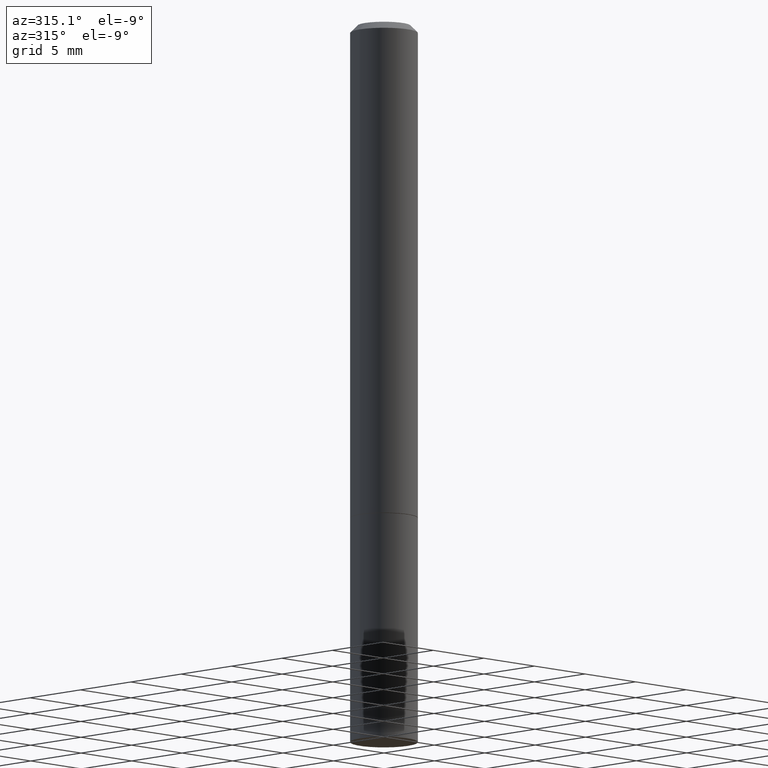
[diagram: clean part render]
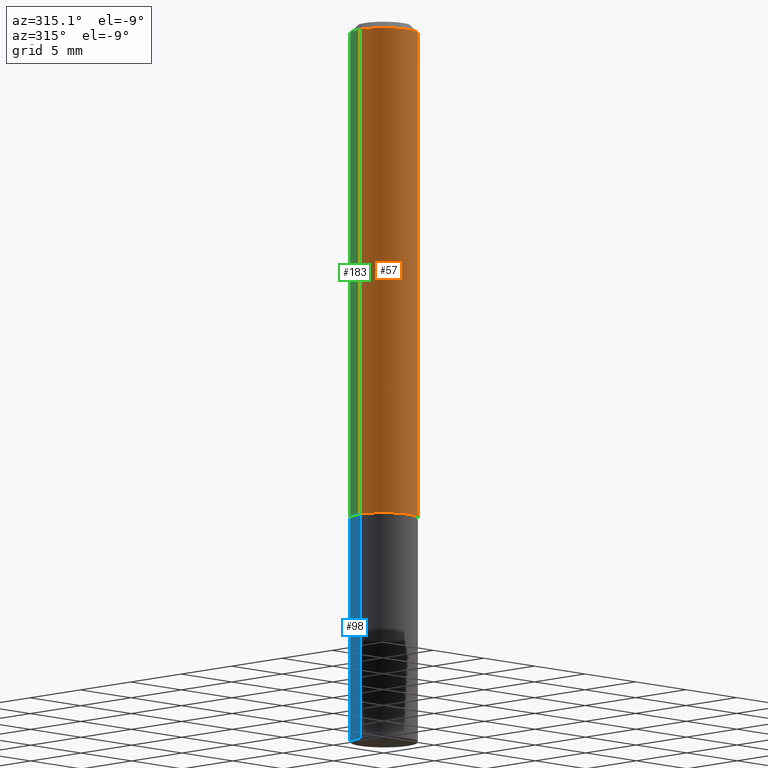
[diagram: same view with three faces highlighted in distinct colors, each labeled with its STEP entity id]
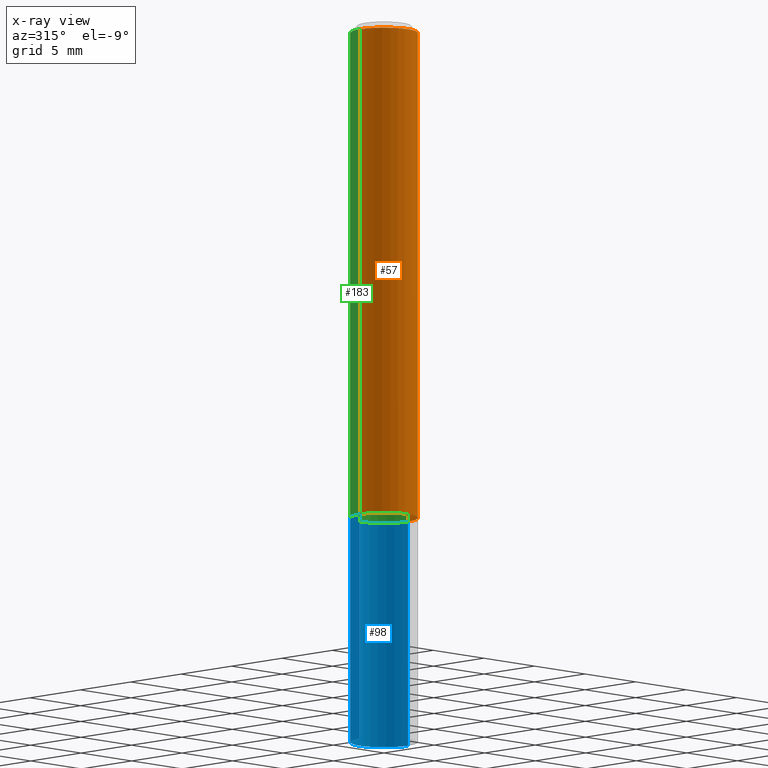
[diagram: x-ray of the same camera — body ghosted, the three highlighted faces saturated]
A machine part, auxiliary view with three faces highlighted in distinct colors.
The next image is the same camera in x-ray (body ghosted, the three faces saturated) — at least one of them is partly hidden behind the body in this view.
Their STEP definitions:

[orange] entity #57 — the highlighted cylindrical surface (edge-blend (fillet) strip) has radius 2.3812 mm, axis along (-0, 0, 1).
#6 = CARTESIAN_POINT ( 'NONE',  ( -0.09375000000000001388, -1.767428678398575728E-15, -1.373999999999999888 ) ) ;
#25 = ORIENTED_EDGE ( 'NONE', *, *, #252, .F. ) ;
#37 = CARTESIAN_POINT ( 'NONE',  ( -0.09374999999999984734, 5.848231242562234171E-16, -0.02000000000000002123 ) ) ;
#52 = EDGE_CURVE ( 'NONE', #329, #269, #220, .T. ) ;
#54 = CARTESIAN_POINT ( 'NONE',  ( 0.000000000000000000, 0.000000000000000000, 0.000000000000000000 ) ) ;
#57 = ADVANCED_FACE ( 'NONE', ( #58 ), #333, .T. ) ;
#58 = FACE_OUTER_BOUND ( 'NONE', #358, .T. ) ;
#79 = AXIS2_PLACEMENT_3D ( 'NONE', #373, #345, #287 ) ;
#116 = EDGE_CURVE ( 'NONE', #248, #269, #161, .T. ) ;
#127 = VECTOR ( 'NONE', #155, 39.37007874015748143 ) ;
#136 = AXIS2_PLACEMENT_3D ( 'NONE', #242, #359, #150 ) ;
#150 = DIRECTION ( 'NONE',  ( 1.000000000000000000, -6.982962677686266711E-15, 0.000000000000000000 ) ) ;
#155 = DIRECTION ( 'NONE',  ( -2.445468806185136877E-29, 3.491481338843145188E-15, 1.000000000000000000 ) ) ;
#157 = CARTESIAN_POINT ( 'NONE',  ( 0.09374999999999984734, -7.130013140679430017E-16, -0.02000000000000002123 ) ) ;
#161 = LINE ( 'NONE', #284, #213 ) ;
#184 = CIRCLE ( 'NONE', #79, 0.09375000000000001388 ) ;
#187 = CARTESIAN_POINT ( 'NONE',  ( 0.09375000000000001388, -5.451948110603568638E-15, -1.373999999999999888 ) ) ;
#204 = ORIENTED_EDGE ( 'NONE', *, *, #310, .T. ) ;
#213 = VECTOR ( 'NONE', #219, 39.37007874015748143 ) ;
#215 = DIRECTION ( 'NONE',  ( -2.445468806185136597E-29, 3.491481338843145583E-15, 1.000000000000000000 ) ) ;
#217 = LINE ( 'NONE', #343, #127 ) ;
#219 = DIRECTION ( 'NONE',  ( -2.445468806185136877E-29, 3.491481338843145188E-15, 1.000000000000000000 ) ) ;
#220 = CIRCLE ( 'NONE', #136, 0.09374999999999984734 ) ;
#242 = CARTESIAN_POINT ( 'NONE',  ( 4.890937612370278413E-31, -6.982962677686297772E-17, -0.02000000000000002123 ) ) ;
#248 = VERTEX_POINT ( 'NONE', #187 ) ;
#252 = EDGE_CURVE ( 'NONE', #344, #329, #217, .T. ) ;
#255 = AXIS2_PLACEMENT_3D ( 'NONE', #54, #215, #336 ) ;
#266 = ORIENTED_EDGE ( 'NONE', *, *, #116, .T. ) ;
#269 = VERTEX_POINT ( 'NONE', #157 ) ;
#284 = CARTESIAN_POINT ( 'NONE',  ( 0.09374999999999991673, -6.546527510330869125E-16, 4.571415727308685602E-30 ) ) ;
#287 = DIRECTION ( 'NONE',  ( 1.000000000000000000, -6.982962677686261189E-15, 0.000000000000000000 ) ) ;
#310 = EDGE_CURVE ( 'NONE', #344, #248, #184, .T. ) ;
#329 = VERTEX_POINT ( 'NONE', #37 ) ;
#333 = CYLINDRICAL_SURFACE ( 'NONE', #255, 0.09374999999999991673 ) ;
#336 = DIRECTION ( 'NONE',  ( 1.000000000000000000, -6.982962677686266711E-15, 4.876176775795935793E-29 ) ) ;
#343 = CARTESIAN_POINT ( 'NONE',  ( -0.09374999999999991673, 6.661338147750933326E-16, -4.611501647113969791E-30 ) ) ;
#344 = VERTEX_POINT ( 'NONE', #6 ) ;
#345 = DIRECTION ( 'NONE',  ( -2.445468806185136597E-29, 3.491481338843145583E-15, 1.000000000000000000 ) ) ;
#358 = EDGE_LOOP ( 'NONE', ( #25, #204, #266, #370 ) ) ;
#359 = DIRECTION ( 'NONE',  ( -2.445468806185136597E-29, 3.491481338843145583E-15, 1.000000000000000000 ) ) ;
#370 = ORIENTED_EDGE ( 'NONE', *, *, #52, .F. ) ;
#373 = CARTESIAN_POINT ( 'NONE',  ( 3.360074139698377778E-29, -4.797295359570481134E-15, -1.373999999999999888 ) ) ;

[blue] entity #98 — the highlighted cylindrical surface (edge-blend (fillet) strip) has radius 2.3813 mm, axis along (-0, 0, 1).
#23 = VERTEX_POINT ( 'NONE', #129 ) ;
#32 = VECTOR ( 'NONE', #70, 39.37007874015748143 ) ;
#38 = DIRECTION ( 'NONE',  ( 1.000000000000000000, -6.982962677686261189E-15, 0.000000000000000000 ) ) ;
#47 = AXIS2_PLACEMENT_3D ( 'NONE', #317, #74, #38 ) ;
#48 = EDGE_LOOP ( 'NONE', ( #281, #382, #224, #271 ) ) ;
#62 = CIRCLE ( 'NONE', #47, 0.09375000000000001388 ) ;
#70 = DIRECTION ( 'NONE',  ( -2.445468806185136877E-29, 3.491481338843145188E-15, 1.000000000000000000 ) ) ;
#74 = DIRECTION ( 'NONE',  ( -2.445468806185136597E-29, 3.491481338843145583E-15, 1.000000000000000000 ) ) ;
#91 = FACE_OUTER_BOUND ( 'NONE', #48, .T. ) ;
#92 = LINE ( 'NONE', #339, #216 ) ;
#98 = ADVANCED_FACE ( 'NONE', ( #91 ), #121, .T. ) ;
#108 = VERTEX_POINT ( 'NONE', #315 ) ;
#115 = CARTESIAN_POINT ( 'NONE',  ( -0.09375000000000001388, -5.225740944522714123E-15, -1.375000000000000000 ) ) ;
#119 = DIRECTION ( 'NONE',  ( -2.445468806185136597E-29, 3.491481338843145583E-15, 1.000000000000000000 ) ) ;
#121 = CYLINDRICAL_SURFACE ( 'NONE', #360, 0.09375000000000001388 ) ;
#129 = CARTESIAN_POINT ( 'NONE',  ( 0.09374999999999984734, -7.626134364977371460E-15, -2.000000000000000000 ) ) ;
#132 = DIRECTION ( 'NONE',  ( -2.445468806185136877E-29, 3.491481338843145188E-15, 1.000000000000000000 ) ) ;
#194 = EDGE_CURVE ( 'NONE', #23, #108, #245, .T. ) ;
#216 = VECTOR ( 'NONE', #132, 39.37007874015748143 ) ;
#224 = ORIENTED_EDGE ( 'NONE', *, *, #376, .F. ) ;
#245 = CIRCLE ( 'NONE', #349, 0.09375000000000001388 ) ;
#247 = CARTESIAN_POINT ( 'NONE',  ( 0.000000000000000000, 0.000000000000000000, 0.000000000000000000 ) ) ;
#250 = VERTEX_POINT ( 'NONE', #115 ) ;
#251 = DIRECTION ( 'NONE',  ( 1.000000000000000000, -6.982962677686265922E-15, 4.876176775795935793E-29 ) ) ;
#254 = VERTEX_POINT ( 'NONE', #316 ) ;
#271 = ORIENTED_EDGE ( 'NONE', *, *, #335, .F. ) ;
#278 = DIRECTION ( 'NONE',  ( -2.445468806185136597E-29, 3.491481338843145583E-15, 1.000000000000000000 ) ) ;
#281 = ORIENTED_EDGE ( 'NONE', *, *, #194, .T. ) ;
#296 = EDGE_CURVE ( 'NONE', #108, #250, #369, .T. ) ;
#314 = DIRECTION ( 'NONE',  ( 1.000000000000000000, -6.982962677686261189E-15, 0.000000000000000000 ) ) ;
#315 = CARTESIAN_POINT ( 'NONE',  ( -0.09374999999999984734, -6.328309926653205239E-15, -2.000000000000000000 ) ) ;
#316 = CARTESIAN_POINT ( 'NONE',  ( 0.09375000000000001388, -5.455439591942412434E-15, -1.375000000000000000 ) ) ;
#317 = CARTESIAN_POINT ( 'NONE',  ( 3.362519608504562260E-29, -4.800786840909324930E-15, -1.375000000000000000 ) ) ;
#335 = EDGE_CURVE ( 'NONE', #23, #254, #92, .T. ) ;
#339 = CARTESIAN_POINT ( 'NONE',  ( 0.09375000000000001388, -6.546527510330875041E-16, 4.571415727308690506E-30 ) ) ;
#349 = AXIS2_PLACEMENT_3D ( 'NONE', #364, #119, #314 ) ;
#360 = AXIS2_PLACEMENT_3D ( 'NONE', #247, #278, #251 ) ;
#364 = CARTESIAN_POINT ( 'NONE',  ( 4.890937612370273194E-29, -6.982962677686291165E-15, -2.000000000000000000 ) ) ;
#366 = CARTESIAN_POINT ( 'NONE',  ( -0.09375000000000001388, 6.661338147750940229E-16, -4.611501647113973995E-30 ) ) ;
#369 = LINE ( 'NONE', #366, #32 ) ;
#376 = EDGE_CURVE ( 'NONE', #254, #250, #62, .T. ) ;
#382 = ORIENTED_EDGE ( 'NONE', *, *, #296, .T. ) ;

[green] entity #183 — the highlighted cylindrical surface (edge-blend (fillet) strip) has radius 2.3812 mm, axis along (-0, 0, 1).
#1 = CARTESIAN_POINT ( 'NONE',  ( 0.000000000000000000, 0.000000000000000000, 0.000000000000000000 ) ) ;
#6 = CARTESIAN_POINT ( 'NONE',  ( -0.09375000000000001388, -1.767428678398575728E-15, -1.373999999999999888 ) ) ;
#22 = ORIENTED_EDGE ( 'NONE', *, *, #116, .F. ) ;
#37 = CARTESIAN_POINT ( 'NONE',  ( -0.09374999999999984734, 5.848231242562234171E-16, -0.02000000000000002123 ) ) ;
#65 = DIRECTION ( 'NONE',  ( 1.000000000000000000, -6.982962677686266711E-15, 4.876176775795935793E-29 ) ) ;
#81 = EDGE_CURVE ( 'NONE', #269, #329, #371, .T. ) ;
#116 = EDGE_CURVE ( 'NONE', #248, #269, #161, .T. ) ;
#117 = DIRECTION ( 'NONE',  ( -2.445468806185136597E-29, 3.491481338843145583E-15, 1.000000000000000000 ) ) ;
#127 = VECTOR ( 'NONE', #155, 39.37007874015748143 ) ;
#139 = EDGE_LOOP ( 'NONE', ( #140, #226, #301, #22 ) ) ;
#140 = ORIENTED_EDGE ( 'NONE', *, *, #362, .T. ) ;
#145 = CIRCLE ( 'NONE', #309, 0.09375000000000001388 ) ;
#155 = DIRECTION ( 'NONE',  ( -2.445468806185136877E-29, 3.491481338843145188E-15, 1.000000000000000000 ) ) ;
#157 = CARTESIAN_POINT ( 'NONE',  ( 0.09374999999999984734, -7.130013140679430017E-16, -0.02000000000000002123 ) ) ;
#161 = LINE ( 'NONE', #284, #213 ) ;
#183 = ADVANCED_FACE ( 'NONE', ( #319 ), #275, .T. ) ;
#187 = CARTESIAN_POINT ( 'NONE',  ( 0.09375000000000001388, -5.451948110603568638E-15, -1.373999999999999888 ) ) ;
#196 = AXIS2_PLACEMENT_3D ( 'NONE', #307, #273, #389 ) ;
#213 = VECTOR ( 'NONE', #219, 39.37007874015748143 ) ;
#217 = LINE ( 'NONE', #343, #127 ) ;
#219 = DIRECTION ( 'NONE',  ( -2.445468806185136877E-29, 3.491481338843145188E-15, 1.000000000000000000 ) ) ;
#226 = ORIENTED_EDGE ( 'NONE', *, *, #252, .T. ) ;
#240 = AXIS2_PLACEMENT_3D ( 'NONE', #1, #117, #65 ) ;
#248 = VERTEX_POINT ( 'NONE', #187 ) ;
#252 = EDGE_CURVE ( 'NONE', #344, #329, #217, .T. ) ;
#269 = VERTEX_POINT ( 'NONE', #157 ) ;
#273 = DIRECTION ( 'NONE',  ( -2.445468806185136597E-29, 3.491481338843145583E-15, 1.000000000000000000 ) ) ;
#275 = CYLINDRICAL_SURFACE ( 'NONE', #240, 0.09374999999999991673 ) ;
#283 = CARTESIAN_POINT ( 'NONE',  ( 3.360074139698377778E-29, -4.797295359570481134E-15, -1.373999999999999888 ) ) ;
#284 = CARTESIAN_POINT ( 'NONE',  ( 0.09374999999999991673, -6.546527510330869125E-16, 4.571415727308685602E-30 ) ) ;
#301 = ORIENTED_EDGE ( 'NONE', *, *, #81, .F. ) ;
#307 = CARTESIAN_POINT ( 'NONE',  ( 4.890937612370278413E-31, -6.982962677686297772E-17, -0.02000000000000002123 ) ) ;
#309 = AXIS2_PLACEMENT_3D ( 'NONE', #283, #377, #313 ) ;
#313 = DIRECTION ( 'NONE',  ( 1.000000000000000000, -6.982962677686261189E-15, 0.000000000000000000 ) ) ;
#319 = FACE_OUTER_BOUND ( 'NONE', #139, .T. ) ;
#329 = VERTEX_POINT ( 'NONE', #37 ) ;
#343 = CARTESIAN_POINT ( 'NONE',  ( -0.09374999999999991673, 6.661338147750933326E-16, -4.611501647113969791E-30 ) ) ;
#344 = VERTEX_POINT ( 'NONE', #6 ) ;
#362 = EDGE_CURVE ( 'NONE', #248, #344, #145, .T. ) ;
#371 = CIRCLE ( 'NONE', #196, 0.09374999999999984734 ) ;
#377 = DIRECTION ( 'NONE',  ( -2.445468806185136597E-29, 3.491481338843145583E-15, 1.000000000000000000 ) ) ;
#389 = DIRECTION ( 'NONE',  ( 1.000000000000000000, -6.982962677686266711E-15, 0.000000000000000000 ) ) ;